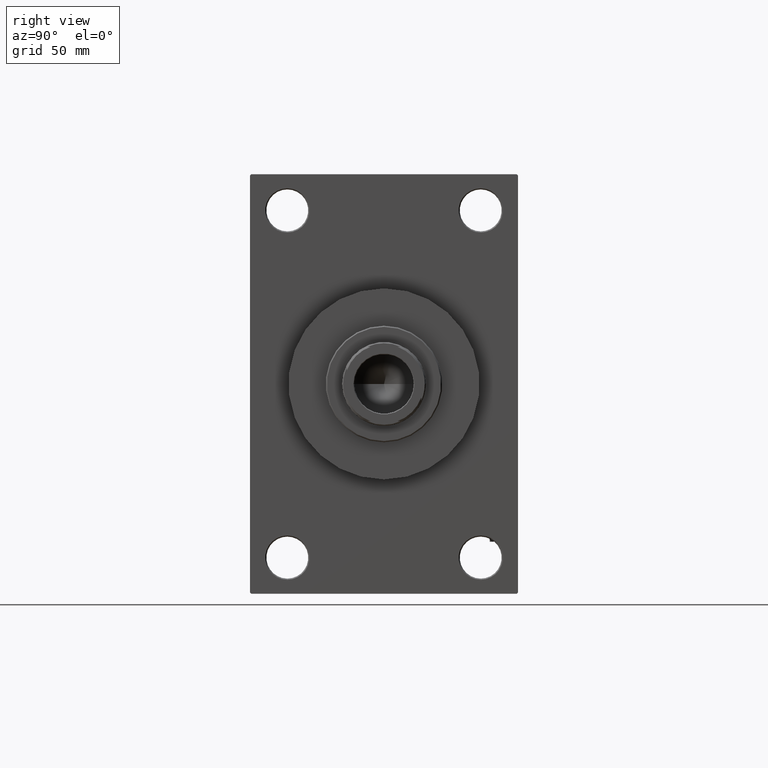
[diagram: clean part render]
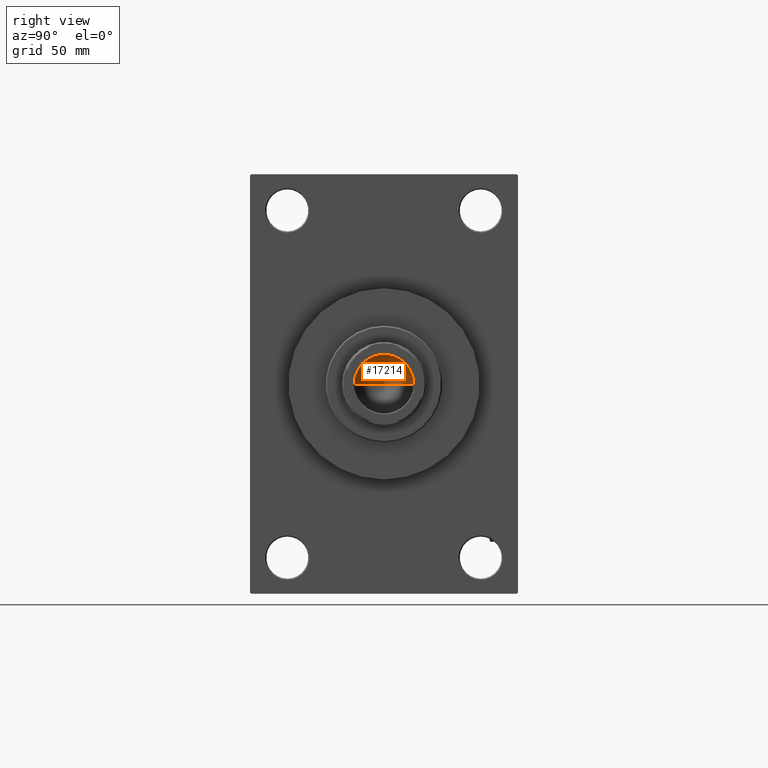
[diagram: same view with one face highlighted and labeled with its STEP entity id]
A machine part, right view. The second image highlights one B-rep face of the part: STEP entity #17214.
In plain terms, the highlighted conical surface has half-angle 59 deg.
Its self-contained STEP definition (entity closure, byte-faithful):
#966 = VECTOR ( 'NONE', #36990, 1000.000000000000000 ) ;
#2947 = CARTESIAN_POINT ( 'NONE',  ( 12.74999999999998934, 0.000000000000000000, 121.0000000000000142 ) ) ;
#3181 = CONICAL_SURFACE ( 'NONE', #4792, 12.74999999999998934, 1.029744258676653423 ) ;
#3193 = VECTOR ( 'NONE', #48565, 1000.000000000000000 ) ;
#4792 = AXIS2_PLACEMENT_3D ( 'NONE', #42645, #15686, #27557 ) ;
#5351 = AXIS2_PLACEMENT_3D ( 'NONE', #32677, #13244, #28638 ) ;
#7348 = EDGE_CURVE ( 'NONE', #19545, #18197, #24692, .T. ) ;
#10769 = CARTESIAN_POINT ( 'NONE',  ( 12.74999999999998934, 0.000000000000000000, 121.0000000000000142 ) ) ;
#13244 = DIRECTION ( 'NONE',  ( -0.000000000000000000, -0.000000000000000000, 1.000000000000000000 ) ) ;
#15686 = DIRECTION ( 'NONE',  ( -0.000000000000000000, -0.000000000000000000, 1.000000000000000000 ) ) ;
#17214 = ADVANCED_FACE ( 'NONE', ( #27309 ), #3181, .F. ) ;
#18197 = VERTEX_POINT ( 'NONE', #10769 ) ;
#19170 = ORIENTED_EDGE ( 'NONE', *, *, #31358, .F. ) ;
#19545 = VERTEX_POINT ( 'NONE', #37149 ) ;
#24692 = CIRCLE ( 'NONE', #5351, 12.74999999999998934 ) ;
#26888 = EDGE_CURVE ( 'NONE', #48835, #19545, #49296, .T. ) ;
#27309 = FACE_OUTER_BOUND ( 'NONE', #40234, .T. ) ;
#27557 = DIRECTION ( 'NONE',  ( 1.000000000000000000, 0.000000000000000000, 0.000000000000000000 ) ) ;
#28638 = DIRECTION ( 'NONE',  ( 1.000000000000000000, 0.000000000000000000, 0.000000000000000000 ) ) ;
#31358 = EDGE_CURVE ( 'NONE', #48835, #18197, #33967, .T. ) ;
#32677 = CARTESIAN_POINT ( 'NONE',  ( 0.000000000000000000, 0.000000000000000000, 121.0000000000000142 ) ) ;
#33967 = LINE ( 'NONE', #2947, #3193 ) ;
#34480 = CARTESIAN_POINT ( 'NONE',  ( -1.410643066818227497E-14, 0.000000000000000000, 113.3390271073986071 ) ) ;
#36990 = DIRECTION ( 'NONE',  ( -0.8571673007021117785, 1.049727191138617956E-16, 0.5150380749100550437 ) ) ;
#37149 = CARTESIAN_POINT ( 'NONE',  ( -12.74999999999998934, 1.561424668912873928E-15, 121.0000000000000142 ) ) ;
#40234 = EDGE_LOOP ( 'NONE', ( #19170, #49317, #49327 ) ) ;
#42645 = CARTESIAN_POINT ( 'NONE',  ( 0.000000000000000000, 0.000000000000000000, 121.0000000000000142 ) ) ;
#45528 = CARTESIAN_POINT ( 'NONE',  ( -12.74999999999998934, 1.561424668912873928E-15, 121.0000000000000142 ) ) ;
#48565 = DIRECTION ( 'NONE',  ( 0.8571673007021117785, 0.000000000000000000, 0.5150380749100550437 ) ) ;
#48835 = VERTEX_POINT ( 'NONE', #34480 ) ;
#49296 = LINE ( 'NONE', #45528, #966 ) ;
#49317 = ORIENTED_EDGE ( 'NONE', *, *, #26888, .T. ) ;
#49327 = ORIENTED_EDGE ( 'NONE', *, *, #7348, .T. ) ;